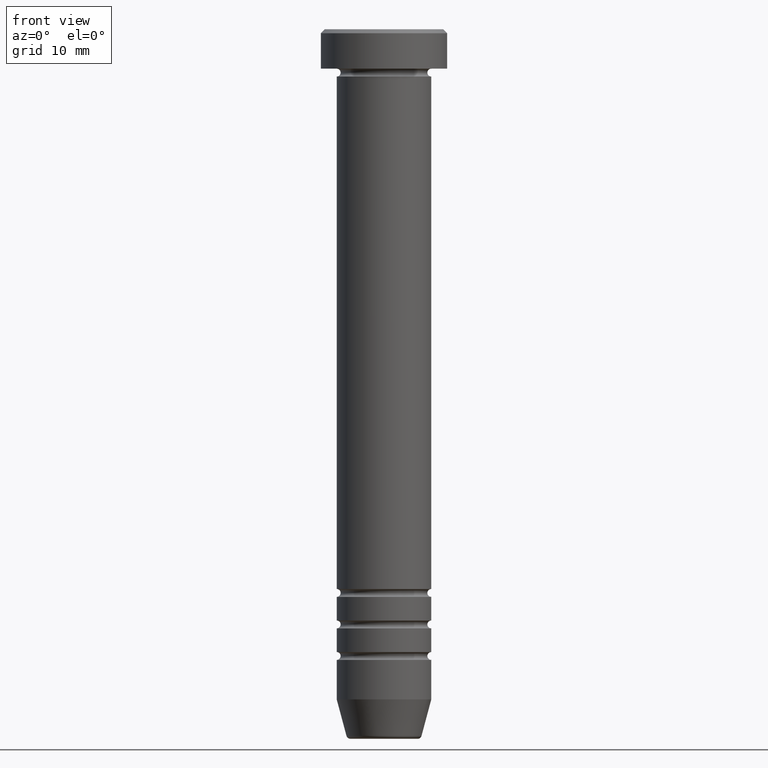
[diagram: clean part render]
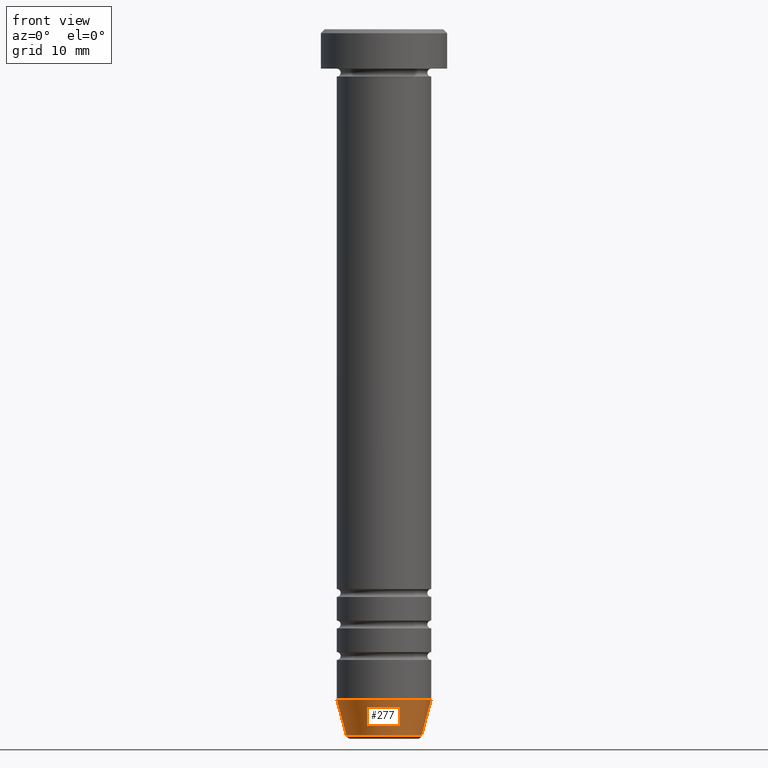
[diagram: same view with one face highlighted and labeled with its STEP entity id]
A machine part, front view. The second image highlights one B-rep face of the part: STEP entity #277.
In plain terms, the highlighted conical surface has half-angle 15 deg.
Its self-contained STEP definition (entity closure, byte-faithful):
#3 = AXIS2_PLACEMENT_3D ( 'NONE', #391, #987, #982 ) ;
#9 = ORIENTED_EDGE ( 'NONE', *, *, #183, .T. ) ;
#49 = VERTEX_POINT ( 'NONE', #255 ) ;
#87 = CIRCLE ( 'NONE', #701, 4.759553456999433330 ) ;
#136 = EDGE_CURVE ( 'NONE', #846, #508, #237, .T. ) ;
#173 = VECTOR ( 'NONE', #983, 1000.000000000000114 ) ;
#183 = EDGE_CURVE ( 'NONE', #49, #508, #490, .T. ) ;
#218 = CARTESIAN_POINT ( 'NONE',  ( -4.660254037844381081, 5.707165190659649910E-16, -90.00000000000000000 ) ) ;
#237 = CIRCLE ( 'NONE', #375, 6.000000000000000000 ) ;
#255 = CARTESIAN_POINT ( 'NONE',  ( 4.759553456999433330, 0.000000000000000000, -89.62940952255125637 ) ) ;
#259 = ORIENTED_EDGE ( 'NONE', *, *, #136, .F. ) ;
#277 = ADVANCED_FACE ( 'NONE', ( #747 ), #465, .T. ) ;
#351 = EDGE_CURVE ( 'NONE', #795, #846, #531, .T. ) ;
#375 = AXIS2_PLACEMENT_3D ( 'NONE', #966, #546, #485 ) ;
#381 = EDGE_LOOP ( 'NONE', ( #599, #686, #9, #259 ) ) ;
#391 = CARTESIAN_POINT ( 'NONE',  ( 0.000000000000000000, 0.000000000000000000, -90.00000000000000000 ) ) ;
#413 = EDGE_CURVE ( 'NONE', #795, #49, #87, .T. ) ;
#465 = CONICAL_SURFACE ( 'NONE', #3, 4.660254037844381081, 0.2617993877991502405 ) ;
#485 = DIRECTION ( 'NONE',  ( 1.000000000000000000, 0.000000000000000000, 0.000000000000000000 ) ) ;
#490 = LINE ( 'NONE', #1058, #173 ) ;
#508 = VERTEX_POINT ( 'NONE', #768 ) ;
#524 = DIRECTION ( 'NONE',  ( -0.000000000000000000, -0.000000000000000000, 1.000000000000000000 ) ) ;
#531 = LINE ( 'NONE', #218, #952 ) ;
#546 = DIRECTION ( 'NONE',  ( -0.000000000000000000, -0.000000000000000000, 1.000000000000000000 ) ) ;
#595 = CARTESIAN_POINT ( 'NONE',  ( -4.759553456999433330, 6.588326350684596347E-16, -89.62940952255125637 ) ) ;
#599 = ORIENTED_EDGE ( 'NONE', *, *, #351, .F. ) ;
#628 = DIRECTION ( 'NONE',  ( -0.2588190451025214611, 3.169619151431774186E-17, 0.9659258262890679791 ) ) ;
#686 = ORIENTED_EDGE ( 'NONE', *, *, #413, .T. ) ;
#701 = AXIS2_PLACEMENT_3D ( 'NONE', #710, #524, #954 ) ;
#710 = CARTESIAN_POINT ( 'NONE',  ( 0.000000000000000000, 0.000000000000000000, -89.62940952255125637 ) ) ;
#747 = FACE_OUTER_BOUND ( 'NONE', #381, .T. ) ;
#768 = CARTESIAN_POINT ( 'NONE',  ( 6.000000000000000000, 0.000000000000000000, -84.99999999999998579 ) ) ;
#795 = VERTEX_POINT ( 'NONE', #595 ) ;
#846 = VERTEX_POINT ( 'NONE', #975 ) ;
#952 = VECTOR ( 'NONE', #628, 1000.000000000000114 ) ;
#954 = DIRECTION ( 'NONE',  ( -1.000000000000000000, 0.000000000000000000, 0.000000000000000000 ) ) ;
#966 = CARTESIAN_POINT ( 'NONE',  ( 0.000000000000000000, 0.000000000000000000, -84.99999999999998579 ) ) ;
#975 = CARTESIAN_POINT ( 'NONE',  ( -6.000000000000000000, 7.347880794884119736E-16, -84.99999999999998579 ) ) ;
#982 = DIRECTION ( 'NONE',  ( 1.000000000000000000, 0.000000000000000000, 0.000000000000000000 ) ) ;
#983 = DIRECTION ( 'NONE',  ( 0.2588190451025214611, 0.000000000000000000, 0.9659258262890679791 ) ) ;
#987 = DIRECTION ( 'NONE',  ( -0.000000000000000000, -0.000000000000000000, 1.000000000000000000 ) ) ;
#1058 = CARTESIAN_POINT ( 'NONE',  ( 4.660254037844381081, 0.000000000000000000, -90.00000000000000000 ) ) ;